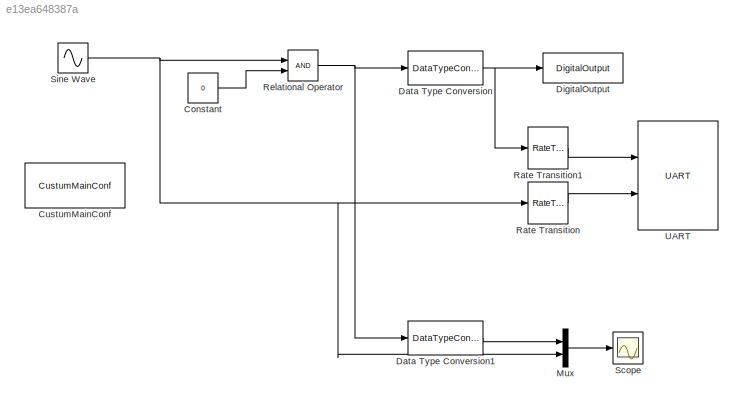
MODEL slx_e13ea648387a
KIND model
BLOCK [Constant] Constant
  Value = 0
BLOCK [Reference] CustumMainConf  REF=mbed_lib/CustumMainConf
  P1 = main.c
  P2 = 0
  Ports = []
  SourceBlock = mbed_lib/CustumMainConf
BLOCK [DataTypeConversion] Data Type Conversion
  OutDataTypeStr = uint8
  RndMeth = Floor
  SaturateOnIntegerOverflow = off
BLOCK [DataTypeConversion] Data Type Conversion1
  OutDataTypeStr = double
  RndMeth = Floor
  SaturateOnIntegerOverflow = off
BLOCK [Reference] DigitalOutput  REF=mbed_lib/DigitalOutput
  Ports = [1]
  SParameter1 = 'LED1'
  SParameter2 = -1
  SourceBlock = mbed_lib/DigitalOutput
  SourceType = MBED: DigitalOutput
BLOCK [Mux] Mux
  DisplayOption = bar
  Inputs = 2
  Ports = [2, 1]
BLOCK [RateTransition] Rate Transition
BLOCK [RateTransition] Rate Transition1
BLOCK [RelationalOperator] Relational Operator
  InputSameDT = off
  OutDataTypeStr = boolean
  Ports = [2, 1]
BLOCK [Scope] Scope
  DataFormat = StructureWithTime
  Floating = off
  NumInputPorts = 1
  Ports = [1]
  SampleTime = 0
  ShowLegends = off
BLOCK [Sin] Sine Wave
  Ports = [0, 1]
  SampleTime = 0
BLOCK [Reference] UART  REF=mbed_lib/UART
  Ports = [2]
  SFunctionSpec = double y1 = dummy(int8 p1,int8 p2,int8 p3)
  SParameter1 = 2
  SParameter2 = led -> %d ; sin -> %4.2f\n
  SParameter3 = 1
  SourceBlock = mbed_lib/UART
  SourceType = MBED: UART
LINE Constant:1 -> Relational Operator:2
LINE Data Type Conversion1:1 -> Mux:1
NET Data Type Conversion:1 -> DigitalOutput:1, Rate Transition1:1
LINE Mux:1 -> Scope:1
LINE Rate Transition1:1 -> UART:1
LINE Rate Transition:1 -> UART:2
NET Relational Operator:1 -> Data Type Conversion1:1, Data Type Conversion:1
NET Sine Wave:1 -> Mux:2, Rate Transition:1, Relational Operator:1
note: NET lines group one-source signal fan-out (src -> all destinations, sorted); 1:1 wires keep LINE
